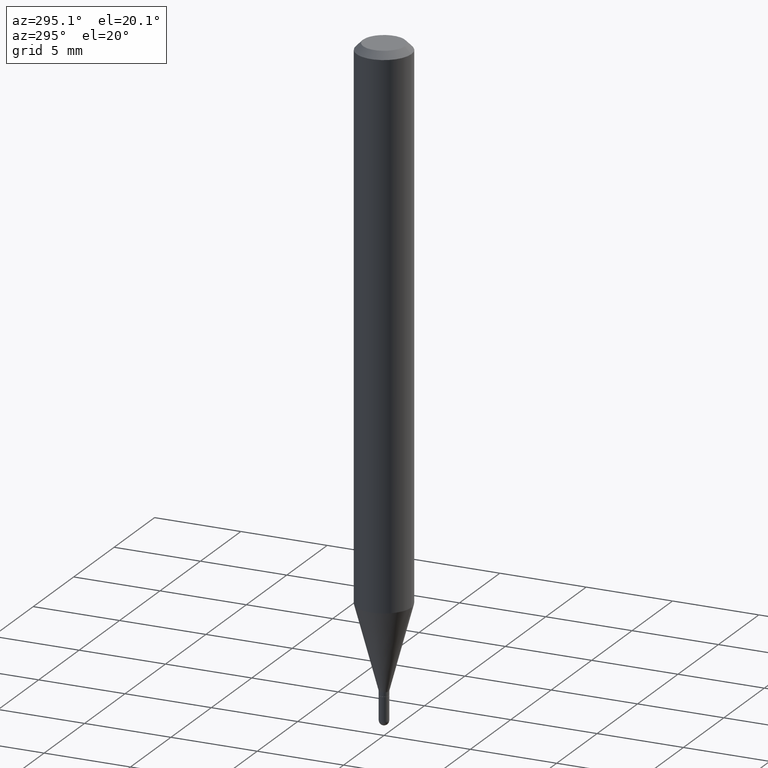
[diagram: clean part render]
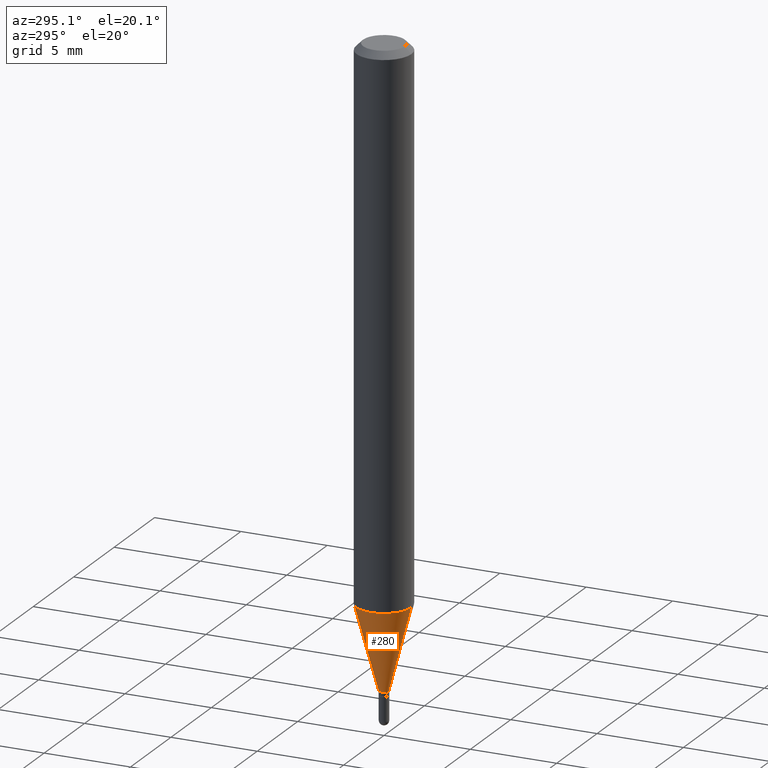
[diagram: same view with one face highlighted and labeled with its STEP entity id]
A machine part, auxiliary view. The second image highlights one B-rep face of the part: STEP entity #280.
In plain terms, the highlighted conical surface has half-angle 15 deg.
Its self-contained STEP definition (entity closure, byte-faithful):
#6 = ORIENTED_EDGE ( 'NONE', *, *, #140, .T. ) ;
#12 = CARTESIAN_POINT ( 'NONE',  ( -7.681258945451356721E-17, -0.01100000000000489475, -1.424000000000000155 ) ) ;
#18 = CARTESIAN_POINT ( 'NONE',  ( 3.012319032265885643E-29, -4.300815924236401857E-15, -1.231799383410203452 ) ) ;
#19 = CONICAL_SURFACE ( 'NONE', #62, 0.01099999999999992130, 0.2617993877991502960 ) ;
#44 = AXIS2_PLACEMENT_3D ( 'NONE', #417, #378, #173 ) ;
#48 = EDGE_CURVE ( 'NONE', #80, #240, #123, .T. ) ;
#62 = AXIS2_PLACEMENT_3D ( 'NONE', #457, #68, #347 ) ;
#68 = DIRECTION ( 'NONE',  ( -2.445462364111890734E-29, 3.491490564258693364E-15, 1.000000000000000000 ) ) ;
#78 = CARTESIAN_POINT ( 'NONE',  ( -7.681258945451356721E-17, -0.01100000000000489475, -1.424000000000000155 ) ) ;
#80 = VERTEX_POINT ( 'NONE', #490 ) ;
#84 = EDGE_LOOP ( 'NONE', ( #273, #6, #242, #504 ) ) ;
#89 = CARTESIAN_POINT ( 'NONE',  ( 2.611244553918690977E-16, 0.01099999999999494958, -1.424000000000000155 ) ) ;
#109 = DIRECTION ( 'NONE',  ( 1.839019923739601104E-15, 0.2588190451025250693, 0.9659258262890670910 ) ) ;
#123 = CIRCLE ( 'NONE', #190, 0.06250000000000000000 ) ;
#140 = EDGE_CURVE ( 'NONE', #396, #225, #141, .T. ) ;
#141 = CIRCLE ( 'NONE', #44, 0.01099999999999992130 ) ;
#173 = DIRECTION ( 'NONE',  ( -6.982962677686266711E-15, -1.000000000000000000, 0.000000000000000000 ) ) ;
#190 = AXIS2_PLACEMENT_3D ( 'NONE', #18, #448, #257 ) ;
#194 = EDGE_CURVE ( 'NONE', #396, #80, #328, .T. ) ;
#225 = VERTEX_POINT ( 'NONE', #78 ) ;
#240 = VERTEX_POINT ( 'NONE', #263 ) ;
#242 = ORIENTED_EDGE ( 'NONE', *, *, #477, .T. ) ;
#257 = DIRECTION ( 'NONE',  ( -6.982962677686265922E-15, -1.000000000000000000, 4.370956789862821150E-15 ) ) ;
#263 = CARTESIAN_POINT ( 'NONE',  ( -4.364351673553613969E-16, -0.06250000000000428824, -1.231799383410203230 ) ) ;
#269 = CARTESIAN_POINT ( 'NONE',  ( 7.815970093364526973E-17, 0.01099999999999494958, -1.424000000000000155 ) ) ;
#273 = ORIENTED_EDGE ( 'NONE', *, *, #194, .F. ) ;
#280 = ADVANCED_FACE ( 'NONE', ( #390 ), #19, .T. ) ;
#319 = DIRECTION ( 'NONE',  ( -1.807323732225330928E-15, -0.2588190451025182970, 0.9659258262890689783 ) ) ;
#328 = LINE ( 'NONE', #269, #496 ) ;
#347 = DIRECTION ( 'NONE',  ( -6.982962677686266711E-15, -1.000000000000000000, 0.000000000000000000 ) ) ;
#365 = LINE ( 'NONE', #12, #430 ) ;
#378 = DIRECTION ( 'NONE',  ( -2.445462364111890734E-29, 3.491490564258693364E-15, 1.000000000000000000 ) ) ;
#390 = FACE_OUTER_BOUND ( 'NONE', #84, .T. ) ;
#396 = VERTEX_POINT ( 'NONE', #89 ) ;
#417 = CARTESIAN_POINT ( 'NONE',  ( 3.482338406495332832E-29, -4.971882563504380638E-15, -1.424000000000000155 ) ) ;
#430 = VECTOR ( 'NONE', #319, 39.37007874015748143 ) ;
#448 = DIRECTION ( 'NONE',  ( -2.445462364111890734E-29, 3.491490564258693364E-15, 1.000000000000000000 ) ) ;
#457 = CARTESIAN_POINT ( 'NONE',  ( 3.482338406495332832E-29, -4.971882563504380638E-15, -1.424000000000000155 ) ) ;
#477 = EDGE_CURVE ( 'NONE', #225, #240, #365, .T. ) ;
#490 = CARTESIAN_POINT ( 'NONE',  ( 4.440892098500924943E-16, 0.06249999999999567013, -1.231799383410203674 ) ) ;
#496 = VECTOR ( 'NONE', #109, 39.37007874015748143 ) ;
#504 = ORIENTED_EDGE ( 'NONE', *, *, #48, .F. ) ;